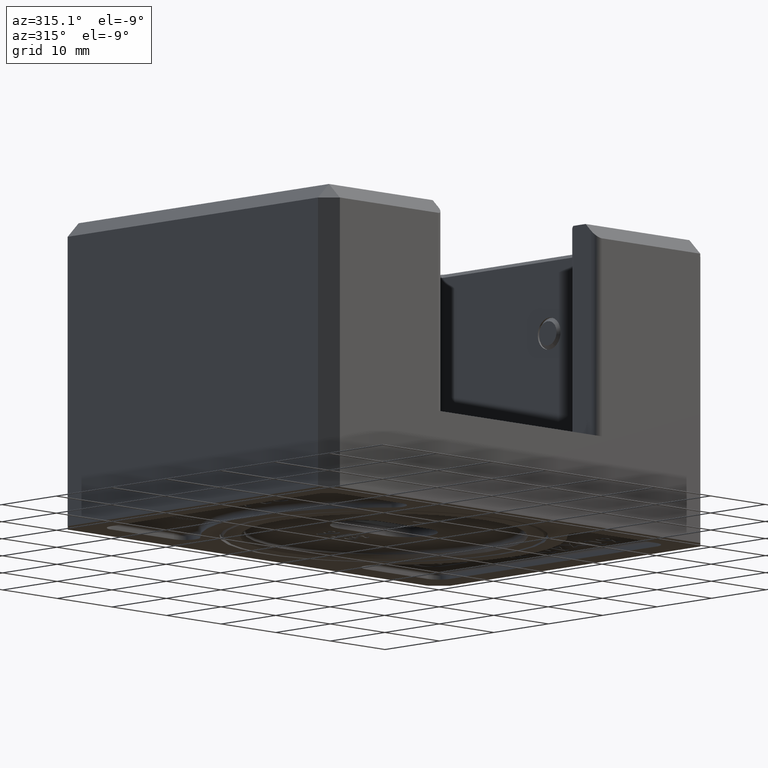
[diagram: clean part render]
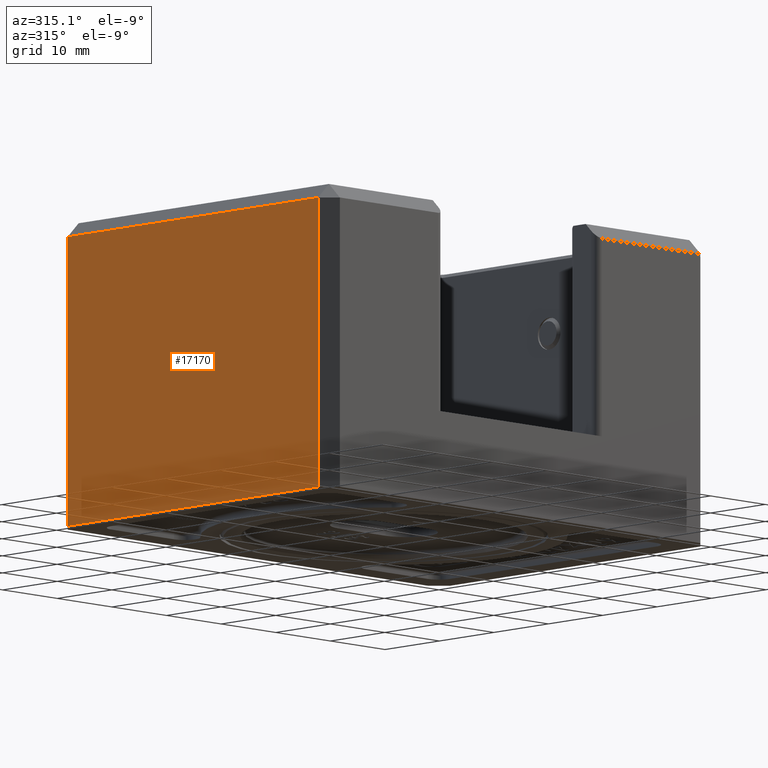
[diagram: same view with one face highlighted and labeled with its STEP entity id]
A machine part, auxiliary view. The second image highlights one B-rep face of the part: STEP entity #17170.
In plain terms, the highlighted planar face has unit normal (1, 0, 0).
Its self-contained STEP definition (entity closure, byte-faithful):
#271 = LINE ( 'NONE', #2820, #10382 ) ;
#793 = ORIENTED_EDGE ( 'NONE', *, *, #13701, .T. ) ;
#2286 = VERTEX_POINT ( 'NONE', #4293 ) ;
#2713 = EDGE_CURVE ( 'NONE', #2286, #21497, #271, .T. ) ;
#2727 = CARTESIAN_POINT ( 'NONE',  ( -35.00000000000000000, 25.00000000000000400, -20.00000000000000000 ) ) ;
#2820 = CARTESIAN_POINT ( 'NONE',  ( -35.00000000000000000, 25.00000000000000400, 17.99999999999997200 ) ) ;
#3564 = EDGE_CURVE ( 'NONE', #22628, #16024, #13049, .T. ) ;
#3926 = LINE ( 'NONE', #14455, #19834 ) ;
#4059 = FACE_OUTER_BOUND ( 'NONE', #6638, .T. ) ;
#4293 = CARTESIAN_POINT ( 'NONE',  ( -34.99999999999999300, -22.99999999999996800, 17.99999999999997200 ) ) ;
#5121 = CARTESIAN_POINT ( 'NONE',  ( -35.00000000000000000, 22.99999999999997500, 17.99999999999997200 ) ) ;
#6638 = EDGE_LOOP ( 'NONE', ( #13432, #793, #19746, #25112 ) ) ;
#7011 = DIRECTION ( 'NONE',  ( 1.000000000000000000, 1.387778780781445700E-016, -0.0000000000000000000 ) ) ;
#10108 = CARTESIAN_POINT ( 'NONE',  ( -35.00000000000000000, 25.00000000000000400, 20.00000000000000000 ) ) ;
#10382 = VECTOR ( 'NONE', #18290, 1000.000000000000000 ) ;
#10601 = LINE ( 'NONE', #18688, #20688 ) ;
#13049 = LINE ( 'NONE', #2727, #13373 ) ;
#13373 = VECTOR ( 'NONE', #16570, 1000.000000000000000 ) ;
#13432 = ORIENTED_EDGE ( 'NONE', *, *, #3564, .T. ) ;
#13701 = EDGE_CURVE ( 'NONE', #16024, #2286, #10601, .T. ) ;
#14455 = CARTESIAN_POINT ( 'NONE',  ( -35.00000000000000000, 22.99999999999997500, 20.00000000000000000 ) ) ;
#14487 = DIRECTION ( 'NONE',  ( 0.0000000000000000000, 0.0000000000000000000, 1.000000000000000000 ) ) ;
#14564 = CARTESIAN_POINT ( 'NONE',  ( -35.00000000000000000, 22.99999999999997500, -20.00000000000000000 ) ) ;
#16024 = VERTEX_POINT ( 'NONE', #18266 ) ;
#16360 = PLANE ( 'NONE',  #18854 ) ;
#16570 = DIRECTION ( 'NONE',  ( 1.387778780781445700E-016, -1.000000000000000000, 0.0000000000000000000 ) ) ;
#17170 = ADVANCED_FACE ( 'NONE', ( #4059 ), #16360, .F. ) ;
#18266 = CARTESIAN_POINT ( 'NONE',  ( -34.99999999999999300, -22.99999999999996800, -20.00000000000000000 ) ) ;
#18290 = DIRECTION ( 'NONE',  ( -1.387778780781445700E-016, 1.000000000000000000, 0.0000000000000000000 ) ) ;
#18688 = CARTESIAN_POINT ( 'NONE',  ( -34.99999999999999300, -22.99999999999996800, 20.00000000000000000 ) ) ;
#18825 = DIRECTION ( 'NONE',  ( -1.387778780781445700E-016, 1.000000000000000000, 0.0000000000000000000 ) ) ;
#18854 = AXIS2_PLACEMENT_3D ( 'NONE', #10108, #7011, #18825 ) ;
#19746 = ORIENTED_EDGE ( 'NONE', *, *, #2713, .T. ) ;
#19834 = VECTOR ( 'NONE', #22150, 1000.000000000000000 ) ;
#20688 = VECTOR ( 'NONE', #14487, 1000.000000000000000 ) ;
#21497 = VERTEX_POINT ( 'NONE', #5121 ) ;
#22150 = DIRECTION ( 'NONE',  ( 0.0000000000000000000, 0.0000000000000000000, -1.000000000000000000 ) ) ;
#22265 = EDGE_CURVE ( 'NONE', #21497, #22628, #3926, .T. ) ;
#22628 = VERTEX_POINT ( 'NONE', #14564 ) ;
#25112 = ORIENTED_EDGE ( 'NONE', *, *, #22265, .T. ) ;